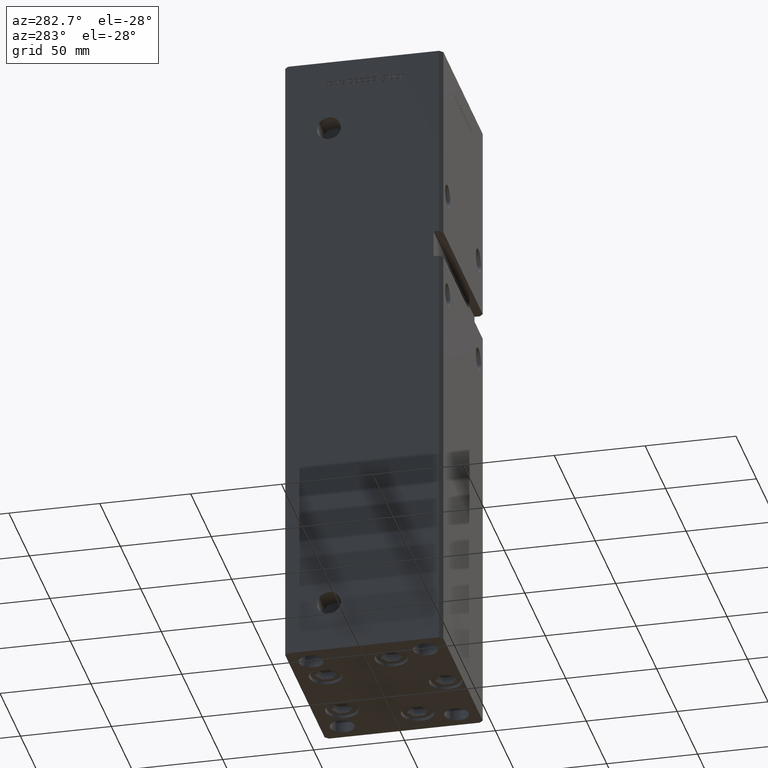
[diagram: clean part render]
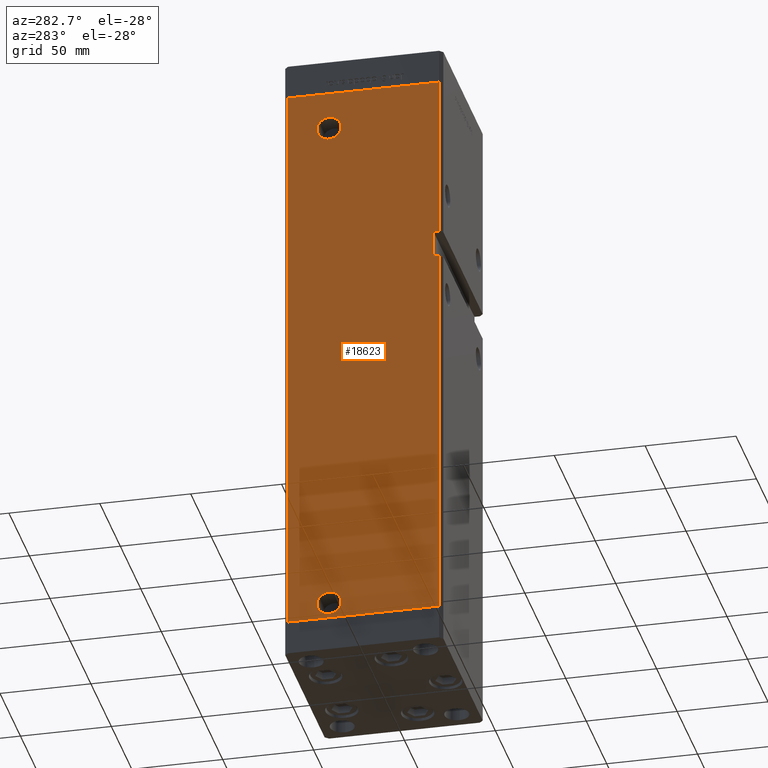
[diagram: same view with one face highlighted and labeled with its STEP entity id]
A machine part, auxiliary view. The second image highlights one B-rep face of the part: STEP entity #18623.
In plain terms, the highlighted planar face has unit normal (1, 0, 0).
Its self-contained STEP definition (entity closure, byte-faithful):
#453 = EDGE_LOOP ( 'NONE', ( #3865, #49413 ) ) ;
#492 = CARTESIAN_POINT ( 'NONE',  ( -50.00000000000000711, 12.41999999999999638, 9.000000000000007105 ) ) ;
#608 = CARTESIAN_POINT ( 'NONE',  ( -50.00000000000000711, 19.00000000000000000, 297.5000000000000000 ) ) ;
#947 = VERTEX_POINT ( 'NONE', #28957 ) ;
#1105 = VECTOR ( 'NONE', #11278, 1000.000000000000000 ) ;
#1693 = CARTESIAN_POINT ( 'NONE',  ( -50.00000000000001421, 41.49999999999999289, 0.000000000000000000 ) ) ;
#1739 = DIRECTION ( 'NONE',  ( -3.344045254895050480E-16, 1.000000000000000000, 0.000000000000000000 ) ) ;
#1896 = CARTESIAN_POINT ( 'NONE',  ( -49.99999999999998579, -41.49999999999999289, 318.5000000000000000 ) ) ;
#1920 = VERTEX_POINT ( 'NONE', #23758 ) ;
#2498 = EDGE_CURVE ( 'NONE', #34642, #14155, #38955, .T. ) ;
#2559 = EDGE_CURVE ( 'NONE', #947, #38340, #27661, .T. ) ;
#2843 = CARTESIAN_POINT ( 'NONE',  ( -50.00000000000001421, 41.49999999999999289, 318.5000000000000000 ) ) ;
#3693 = DIRECTION ( 'NONE',  ( -0.000000000000000000, -0.000000000000000000, -1.000000000000000000 ) ) ;
#3865 = ORIENTED_EDGE ( 'NONE', *, *, #41814, .F. ) ;
#4184 = ORIENTED_EDGE ( 'NONE', *, *, #48875, .F. ) ;
#4715 = ORIENTED_EDGE ( 'NONE', *, *, #27258, .F. ) ;
#5832 = VECTOR ( 'NONE', #26430, 1000.000000000000000 ) ;
#6222 = ORIENTED_EDGE ( 'NONE', *, *, #2559, .F. ) ;
#7417 = CARTESIAN_POINT ( 'NONE',  ( -49.99999999999998579, -41.49999999999999289, 213.0000000000000000 ) ) ;
#8105 = VERTEX_POINT ( 'NONE', #43888 ) ;
#9047 = ORIENTED_EDGE ( 'NONE', *, *, #40928, .F. ) ;
#9396 = CARTESIAN_POINT ( 'NONE',  ( -49.99999999999998579, -41.49999999999999289, 0.000000000000000000 ) ) ;
#9585 = CARTESIAN_POINT ( 'NONE',  ( -49.99999999999998579, -38.50000000000000000, 228.0000000000000000 ) ) ;
#9931 = CARTESIAN_POINT ( 'NONE',  ( -50.00000000000000711, 19.00000000000000000, 297.5000000000000000 ) ) ;
#9976 = DIRECTION ( 'NONE',  ( -0.000000000000000000, -0.000000000000000000, -1.000000000000000000 ) ) ;
#10359 = CARTESIAN_POINT ( 'NONE',  ( -50.00000000000001421, 41.49999999999999289, 318.5000000000000000 ) ) ;
#10446 = DIRECTION ( 'NONE',  ( -1.000000000000000000, -2.275047181608927644E-16, 0.000000000000000000 ) ) ;
#11278 = DIRECTION ( 'NONE',  ( -0.000000000000000000, -1.000000000000000000, -0.000000000000000000 ) ) ;
#12714 = AXIS2_PLACEMENT_3D ( 'NONE', #9931, #10446, #39163 ) ;
#13150 = DIRECTION ( 'NONE',  ( 0.000000000000000000, -1.000000000000000000, 0.000000000000000000 ) ) ;
#13761 = DIRECTION ( 'NONE',  ( -1.000000000000000000, -2.275047181608927644E-16, 0.000000000000000000 ) ) ;
#14155 = VERTEX_POINT ( 'NONE', #34874 ) ;
#15102 = ORIENTED_EDGE ( 'NONE', *, *, #41691, .T. ) ;
#16068 = LINE ( 'NONE', #49347, #47781 ) ;
#16900 = EDGE_CURVE ( 'NONE', #30149, #43899, #35718, .T. ) ;
#16920 = DIRECTION ( 'NONE',  ( -1.000000000000000000, -2.275047181608927644E-16, 0.000000000000000000 ) ) ;
#18046 = VECTOR ( 'NONE', #27471, 1000.000000000000000 ) ;
#18623 = ADVANCED_FACE ( 'NONE', ( #51416, #30497, #22439 ), #18936, .F. ) ;
#18936 = PLANE ( 'NONE',  #35749 ) ;
#19617 = CARTESIAN_POINT ( 'NONE',  ( -49.99999999999998579, -38.50000000000000000, 213.0000000000000000 ) ) ;
#21523 = CIRCLE ( 'NONE', #48890, 6.580000000000002736 ) ;
#21608 = ORIENTED_EDGE ( 'NONE', *, *, #2498, .F. ) ;
#21862 = DIRECTION ( 'NONE',  ( -1.000000000000000000, -2.275047181608927644E-16, 0.000000000000000000 ) ) ;
#22439 = FACE_BOUND ( 'NONE', #51390, .T. ) ;
#22879 = CARTESIAN_POINT ( 'NONE',  ( -50.00000000000000711, 19.00000000000000000, 9.000000000000007105 ) ) ;
#23326 = VERTEX_POINT ( 'NONE', #44636 ) ;
#23594 = ORIENTED_EDGE ( 'NONE', *, *, #35922, .T. ) ;
#23758 = CARTESIAN_POINT ( 'NONE',  ( -50.00000000000001421, 41.49999999999999289, 0.000000000000000000 ) ) ;
#24007 = VECTOR ( 'NONE', #42609, 1000.000000000000000 ) ;
#24043 = AXIS2_PLACEMENT_3D ( 'NONE', #36501, #16920, #13150 ) ;
#24893 = EDGE_CURVE ( 'NONE', #38340, #31246, #16068, .T. ) ;
#26003 = EDGE_CURVE ( 'NONE', #1920, #31246, #51116, .T. ) ;
#26430 = DIRECTION ( 'NONE',  ( 3.344045254895050973E-16, -1.000000000000000000, 0.000000000000000000 ) ) ;
#26983 = EDGE_LOOP ( 'NONE', ( #50757, #6222, #9047, #23594, #21608, #4184, #15102, #52754 ) ) ;
#27258 = EDGE_CURVE ( 'NONE', #43899, #30149, #36738, .T. ) ;
#27471 = DIRECTION ( 'NONE',  ( 0.000000000000000000, 0.000000000000000000, -1.000000000000000000 ) ) ;
#27661 = LINE ( 'NONE', #19617, #1105 ) ;
#28261 = CARTESIAN_POINT ( 'NONE',  ( -50.00000000000001421, 41.49999999999999289, 318.5000000000000000 ) ) ;
#28852 = AXIS2_PLACEMENT_3D ( 'NONE', #608, #21862, #42522 ) ;
#28957 = CARTESIAN_POINT ( 'NONE',  ( -49.99999999999998579, -38.50000000000000000, 213.0000000000000000 ) ) ;
#30149 = VERTEX_POINT ( 'NONE', #48854 ) ;
#30497 = FACE_BOUND ( 'NONE', #453, .T. ) ;
#30794 = LINE ( 'NONE', #28261, #35213 ) ;
#31141 = VECTOR ( 'NONE', #9976, 1000.000000000000000 ) ;
#31246 = VERTEX_POINT ( 'NONE', #9396 ) ;
#31584 = DIRECTION ( 'NONE',  ( 3.344045254895050973E-16, -1.000000000000000000, 0.000000000000000000 ) ) ;
#31756 = LINE ( 'NONE', #52956, #18046 ) ;
#34545 = LINE ( 'NONE', #9585, #24007 ) ;
#34642 = VERTEX_POINT ( 'NONE', #38370 ) ;
#34874 = CARTESIAN_POINT ( 'NONE',  ( -49.99999999999998579, -41.49999999999999289, 228.0000000000000000 ) ) ;
#35213 = VECTOR ( 'NONE', #43120, 1000.000000000000000 ) ;
#35718 = CIRCLE ( 'NONE', #28852, 6.580000000000044480 ) ;
#35749 = AXIS2_PLACEMENT_3D ( 'NONE', #46857, #39315, #1739 ) ;
#35922 = EDGE_CURVE ( 'NONE', #8105, #14155, #34545, .T. ) ;
#36501 = CARTESIAN_POINT ( 'NONE',  ( -50.00000000000000711, 19.00000000000000000, 9.000000000000007105 ) ) ;
#36738 = CIRCLE ( 'NONE', #12714, 6.580000000000044480 ) ;
#38340 = VERTEX_POINT ( 'NONE', #7417 ) ;
#38370 = CARTESIAN_POINT ( 'NONE',  ( -49.99999999999998579, -41.49999999999999289, 318.5000000000000000 ) ) ;
#38828 = VECTOR ( 'NONE', #31584, 1000.000000000000000 ) ;
#38955 = LINE ( 'NONE', #1896, #31141 ) ;
#39163 = DIRECTION ( 'NONE',  ( 0.000000000000000000, -1.000000000000000000, 0.000000000000000000 ) ) ;
#39315 = DIRECTION ( 'NONE',  ( 1.000000000000000000, 3.344045254895050480E-16, -0.000000000000000000 ) ) ;
#40928 = EDGE_CURVE ( 'NONE', #8105, #947, #31756, .T. ) ;
#41233 = EDGE_CURVE ( 'NONE', #23326, #53056, #44595, .T. ) ;
#41691 = EDGE_CURVE ( 'NONE', #42966, #1920, #30794, .T. ) ;
#41733 = CARTESIAN_POINT ( 'NONE',  ( -50.00000000000000711, 25.58000000000004448, 297.5000000000000000 ) ) ;
#41814 = EDGE_CURVE ( 'NONE', #53056, #23326, #21523, .T. ) ;
#42522 = DIRECTION ( 'NONE',  ( 0.000000000000000000, -1.000000000000000000, 0.000000000000000000 ) ) ;
#42609 = DIRECTION ( 'NONE',  ( -0.000000000000000000, -1.000000000000000000, -0.000000000000000000 ) ) ;
#42966 = VERTEX_POINT ( 'NONE', #10359 ) ;
#43120 = DIRECTION ( 'NONE',  ( -0.000000000000000000, -0.000000000000000000, -1.000000000000000000 ) ) ;
#43888 = CARTESIAN_POINT ( 'NONE',  ( -49.99999999999998579, -38.50000000000000000, 228.0000000000000000 ) ) ;
#43899 = VERTEX_POINT ( 'NONE', #41733 ) ;
#44595 = CIRCLE ( 'NONE', #24043, 6.580000000000002736 ) ;
#44636 = CARTESIAN_POINT ( 'NONE',  ( -50.00000000000000711, 25.58000000000000185, 9.000000000000007105 ) ) ;
#46857 = CARTESIAN_POINT ( 'NONE',  ( -50.00000000000001421, 41.49999999999999289, 318.5000000000000000 ) ) ;
#47781 = VECTOR ( 'NONE', #3693, 1000.000000000000000 ) ;
#47932 = ORIENTED_EDGE ( 'NONE', *, *, #16900, .F. ) ;
#48854 = CARTESIAN_POINT ( 'NONE',  ( -50.00000000000000711, 12.41999999999995552, 297.5000000000000000 ) ) ;
#48875 = EDGE_CURVE ( 'NONE', #42966, #34642, #52523, .T. ) ;
#48890 = AXIS2_PLACEMENT_3D ( 'NONE', #22879, #13761, #50810 ) ;
#49347 = CARTESIAN_POINT ( 'NONE',  ( -49.99999999999998579, -41.49999999999999289, 318.5000000000000000 ) ) ;
#49413 = ORIENTED_EDGE ( 'NONE', *, *, #41233, .F. ) ;
#50757 = ORIENTED_EDGE ( 'NONE', *, *, #24893, .F. ) ;
#50810 = DIRECTION ( 'NONE',  ( 0.000000000000000000, -1.000000000000000000, 0.000000000000000000 ) ) ;
#51116 = LINE ( 'NONE', #1693, #5832 ) ;
#51390 = EDGE_LOOP ( 'NONE', ( #47932, #4715 ) ) ;
#51416 = FACE_OUTER_BOUND ( 'NONE', #26983, .T. ) ;
#52523 = LINE ( 'NONE', #2843, #38828 ) ;
#52754 = ORIENTED_EDGE ( 'NONE', *, *, #26003, .T. ) ;
#52956 = CARTESIAN_POINT ( 'NONE',  ( -49.99999999999998579, -38.50000000000000000, 228.0000000000000000 ) ) ;
#53056 = VERTEX_POINT ( 'NONE', #492 ) ;